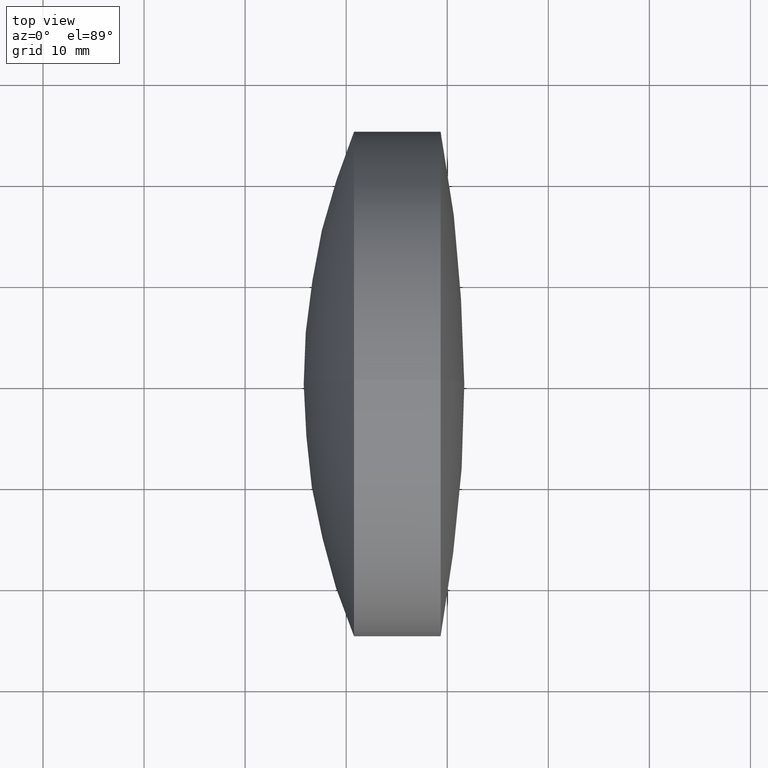
[diagram: clean part render]
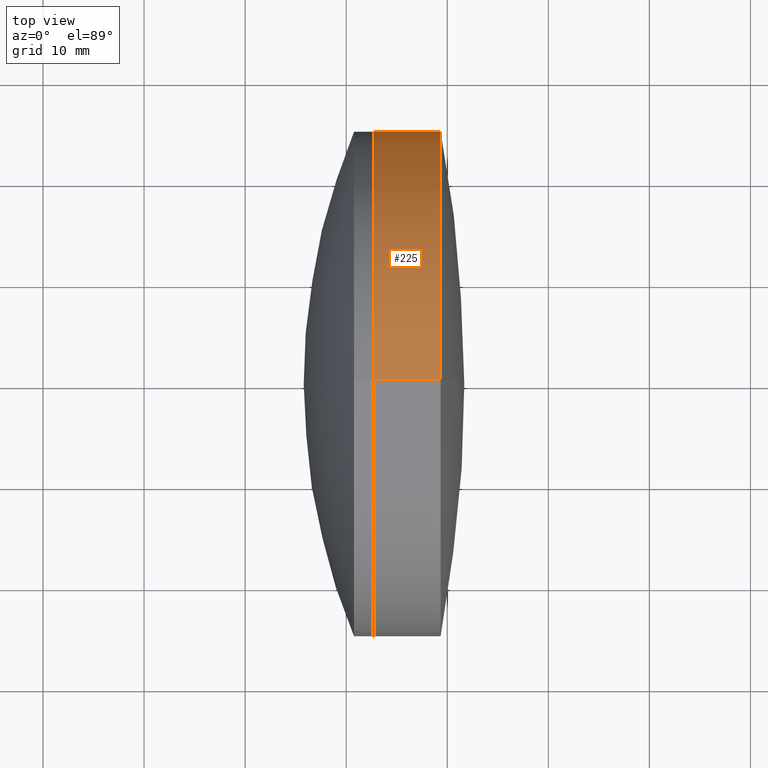
[diagram: same view with one face highlighted and labeled with its STEP entity id]
A machine part, top view. The second image highlights one B-rep face of the part: STEP entity #225.
In plain terms, the highlighted cylindrical surface (partial cylindrical patch) has radius 25 mm, axis along (-1, -0, -0).
Its self-contained STEP definition (entity closure, byte-faithful):
#13 = VERTEX_POINT ( 'NONE', #235 ) ;
#15 = VERTEX_POINT ( 'NONE', #234 ) ;
#35 = LINE ( 'NONE', #239, #110 ) ;
#44 = AXIS2_PLACEMENT_3D ( 'NONE', #178, #86, #271 ) ;
#66 = DIRECTION ( 'NONE',  ( -1.000000000000000000, -0.0000000000000000000, -0.0000000000000000000 ) ) ;
#74 = CARTESIAN_POINT ( 'NONE',  ( 222.6946538294740800, 0.0000000000000000000, 0.0000000000000000000 ) ) ;
#76 = ORIENTED_EDGE ( 'NONE', *, *, #108, .F. ) ;
#84 = DIRECTION ( 'NONE',  ( 0.0000000000000000000, 0.0000000000000000000, 1.000000000000000000 ) ) ;
#86 = DIRECTION ( 'NONE',  ( -1.000000000000000000, -0.0000000000000000000, -0.0000000000000000000 ) ) ;
#99 = FACE_OUTER_BOUND ( 'NONE', #316, .T. ) ;
#101 = CARTESIAN_POINT ( 'NONE',  ( 229.3432433009272400, 3.061616997868384200E-015, -25.00000000000001100 ) ) ;
#104 = CIRCLE ( 'NONE', #297, 25.00000000000001100 ) ;
#108 = EDGE_CURVE ( 'NONE', #13, #15, #223, .T. ) ;
#110 = VECTOR ( 'NONE', #169, 1000.000000000000000 ) ;
#112 = CARTESIAN_POINT ( 'NONE',  ( -0.5519199926577972300, 3.061616997868384200E-015, -25.00000000000001100 ) ) ;
#123 = DIRECTION ( 'NONE',  ( -1.000000000000000000, -0.0000000000000000000, -0.0000000000000000000 ) ) ;
#127 = EDGE_CURVE ( 'NONE', #335, #15, #256, .T. ) ;
#130 = VERTEX_POINT ( 'NONE', #148 ) ;
#141 = ORIENTED_EDGE ( 'NONE', *, *, #214, .T. ) ;
#148 = CARTESIAN_POINT ( 'NONE',  ( 229.3432433009272400, 0.0000000000000000000, 25.00000000000001100 ) ) ;
#166 = DIRECTION ( 'NONE',  ( -1.000000000000000000, -0.0000000000000000000, -0.0000000000000000000 ) ) ;
#169 = DIRECTION ( 'NONE',  ( -1.000000000000000000, -0.0000000000000000000, -0.0000000000000000000 ) ) ;
#171 = CARTESIAN_POINT ( 'NONE',  ( 229.3432433009272400, 0.0000000000000000000, 0.0000000000000000000 ) ) ;
#178 = CARTESIAN_POINT ( 'NONE',  ( -0.5519199926577972300, 0.0000000000000000000, 0.0000000000000000000 ) ) ;
#212 = ORIENTED_EDGE ( 'NONE', *, *, #222, .F. ) ;
#214 = EDGE_CURVE ( 'NONE', #130, #335, #104, .T. ) ;
#222 = EDGE_CURVE ( 'NONE', #130, #13, #35, .T. ) ;
#223 = CIRCLE ( 'NONE', #342, 25.00000000000001100 ) ;
#225 = ADVANCED_FACE ( 'NONE', ( #99 ), #247, .T. ) ;
#234 = CARTESIAN_POINT ( 'NONE',  ( 222.6946538294740800, 3.061616997868383800E-015, -25.00000000000001100 ) ) ;
#235 = CARTESIAN_POINT ( 'NONE',  ( 222.6946538294740800, 0.0000000000000000000, 25.00000000000000700 ) ) ;
#239 = CARTESIAN_POINT ( 'NONE',  ( -0.5519199926577972300, 0.0000000000000000000, 25.00000000000001100 ) ) ;
#247 = CYLINDRICAL_SURFACE ( 'NONE', #44, 25.00000000000001100 ) ;
#256 = LINE ( 'NONE', #112, #288 ) ;
#271 = DIRECTION ( 'NONE',  ( 0.0000000000000000000, 0.0000000000000000000, 1.000000000000000000 ) ) ;
#276 = ORIENTED_EDGE ( 'NONE', *, *, #127, .T. ) ;
#288 = VECTOR ( 'NONE', #166, 1000.000000000000000 ) ;
#297 = AXIS2_PLACEMENT_3D ( 'NONE', #171, #66, #308 ) ;
#308 = DIRECTION ( 'NONE',  ( 0.0000000000000000000, 0.0000000000000000000, 1.000000000000000000 ) ) ;
#316 = EDGE_LOOP ( 'NONE', ( #141, #276, #76, #212 ) ) ;
#335 = VERTEX_POINT ( 'NONE', #101 ) ;
#342 = AXIS2_PLACEMENT_3D ( 'NONE', #74, #123, #84 ) ;